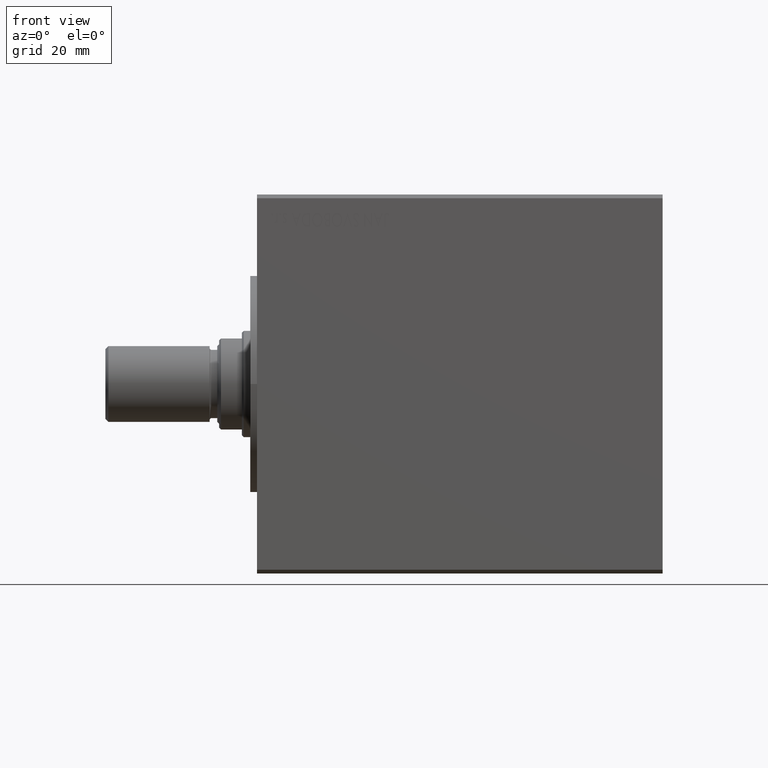
[diagram: clean part render]
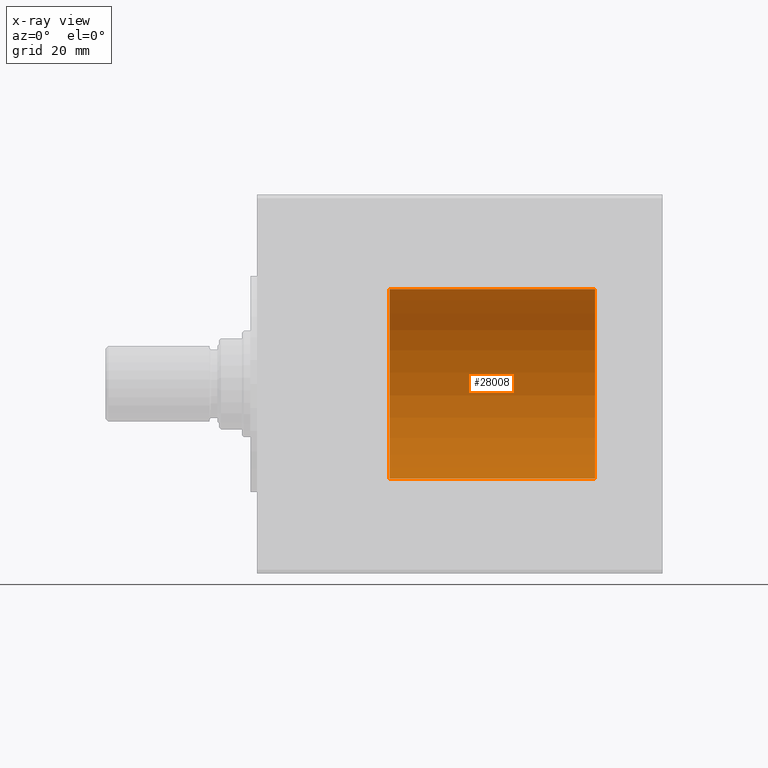
[diagram: x-ray — body ghosted, one internal face saturated and labeled with its STEP entity id]
A machine part, front view, then the same camera in x-ray: the body is ghosted and one INTERNAL B-rep face — a face not visible from any outside direction — is saturated and labeled: STEP entity #28008.
In plain terms, the highlighted cylindrical surface (partial cylindrical patch) has radius 25 mm, axis along (1, -0, -0).
Its self-contained STEP definition (entity closure, byte-faithful):
#1546 = DIRECTION ( 'NONE',  ( 0.000000000000000000, 0.000000000000000000, 1.000000000000000000 ) ) ;
#2109 = FACE_OUTER_BOUND ( 'NONE', #27460, .T. ) ;
#2839 = DIRECTION ( 'NONE',  ( 1.000000000000000000, 0.000000000000000000, 0.000000000000000000 ) ) ;
#4502 = VERTEX_POINT ( 'NONE', #23258 ) ;
#5310 = LINE ( 'NONE', #24898, #40736 ) ;
#5744 = ORIENTED_EDGE ( 'NONE', *, *, #9134, .F. ) ;
#9082 = DIRECTION ( 'NONE',  ( -0.000000000000000000, -0.000000000000000000, -1.000000000000000000 ) ) ;
#9134 = EDGE_CURVE ( 'NONE', #15488, #4502, #5310, .T. ) ;
#9482 = EDGE_CURVE ( 'NONE', #39275, #31614, #13127, .T. ) ;
#9829 = CARTESIAN_POINT ( 'NONE',  ( 25.00000000000000000, 3.061616997868382254E-15, 0.000000000000000000 ) ) ;
#12205 = CARTESIAN_POINT ( 'NONE',  ( -25.00000000000000000, 0.000000000000000000, 54.20000000000000284 ) ) ;
#13127 = LINE ( 'NONE', #40298, #36374 ) ;
#14898 = AXIS2_PLACEMENT_3D ( 'NONE', #36059, #15857, #21923 ) ;
#15284 = DIRECTION ( 'NONE',  ( 1.000000000000000000, 0.000000000000000000, 0.000000000000000000 ) ) ;
#15488 = VERTEX_POINT ( 'NONE', #12205 ) ;
#15857 = DIRECTION ( 'NONE',  ( -0.000000000000000000, -0.000000000000000000, -1.000000000000000000 ) ) ;
#17773 = CARTESIAN_POINT ( 'NONE',  ( 0.000000000000000000, 0.000000000000000000, 54.20000000000000284 ) ) ;
#18156 = EDGE_CURVE ( 'NONE', #39275, #15488, #36942, .T. ) ;
#18555 = CYLINDRICAL_SURFACE ( 'NONE', #14898, 25.00000000000000000 ) ;
#21566 = ORIENTED_EDGE ( 'NONE', *, *, #31546, .T. ) ;
#21923 = DIRECTION ( 'NONE',  ( -1.000000000000000000, 0.000000000000000000, 0.000000000000000000 ) ) ;
#22054 = AXIS2_PLACEMENT_3D ( 'NONE', #40157, #30068, #2839 ) ;
#23258 = CARTESIAN_POINT ( 'NONE',  ( -25.00000000000000000, 0.000000000000000000, 0.000000000000000000 ) ) ;
#24898 = CARTESIAN_POINT ( 'NONE',  ( -25.00000000000000000, 0.000000000000000000, 54.20000000000000284 ) ) ;
#25779 = CARTESIAN_POINT ( 'NONE',  ( 25.00000000000000000, 3.061616997868382254E-15, 54.20000000000000284 ) ) ;
#27460 = EDGE_LOOP ( 'NONE', ( #35670, #40761, #21566, #5744 ) ) ;
#28008 = ADVANCED_FACE ( 'NONE', ( #2109 ), #18555, .T. ) ;
#30068 = DIRECTION ( 'NONE',  ( 0.000000000000000000, 0.000000000000000000, 1.000000000000000000 ) ) ;
#31546 = EDGE_CURVE ( 'NONE', #31614, #4502, #41407, .T. ) ;
#31614 = VERTEX_POINT ( 'NONE', #9829 ) ;
#35670 = ORIENTED_EDGE ( 'NONE', *, *, #18156, .F. ) ;
#36059 = CARTESIAN_POINT ( 'NONE',  ( 0.000000000000000000, 0.000000000000000000, 54.20000000000000284 ) ) ;
#36374 = VECTOR ( 'NONE', #9082, 1000.000000000000000 ) ;
#36765 = DIRECTION ( 'NONE',  ( -0.000000000000000000, -0.000000000000000000, -1.000000000000000000 ) ) ;
#36942 = CIRCLE ( 'NONE', #41934, 25.00000000000000000 ) ;
#39275 = VERTEX_POINT ( 'NONE', #25779 ) ;
#40157 = CARTESIAN_POINT ( 'NONE',  ( 0.000000000000000000, 0.000000000000000000, 0.000000000000000000 ) ) ;
#40298 = CARTESIAN_POINT ( 'NONE',  ( 25.00000000000000000, 3.061616997868382254E-15, 54.20000000000000284 ) ) ;
#40736 = VECTOR ( 'NONE', #36765, 1000.000000000000000 ) ;
#40761 = ORIENTED_EDGE ( 'NONE', *, *, #9482, .T. ) ;
#41407 = CIRCLE ( 'NONE', #22054, 25.00000000000000000 ) ;
#41934 = AXIS2_PLACEMENT_3D ( 'NONE', #17773, #1546, #15284 ) ;